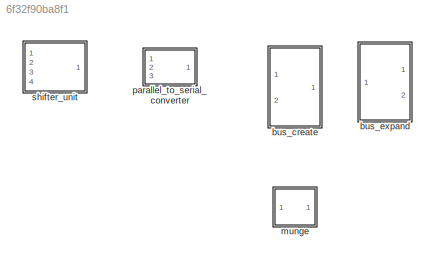
MODEL slx_6f32f90ba8f1
KIND library
CONFIG AbsTol = auto
CONFIG EnableMultiTasking = off
CONFIG FixedStep = auto
CONFIG MaxStep = auto
CONFIG MinStep = auto
CONFIG RelTol = 1e-3
CONFIG SampleTimeConstraint = Unconstrained
CONFIG Solver = ode45
CONFIG SolverName = ode45
CONFIG StartTime = 0.0
CONFIG StopTime = 10.0
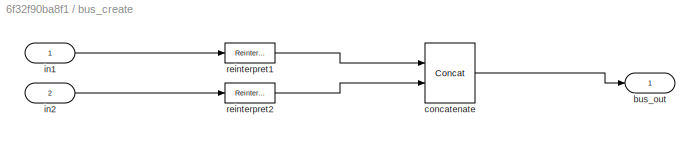
BLOCK [SubSystem] bus_create
  Ports = [2, 1]
  RequestExecContextInheritance = off
  UserDataPersistent = on
BLOCK [Outport] bus_create/bus_out
  IconDisplay = Port number
BLOCK [Reference] bus_create/concatenate  REF=xbsIndex_r4/Concat
  Ports = [2, 1]
  SourceBlock = xbsIndex_r4/Concat
  SourceType = Xilinx Bus Concatenator Block
BLOCK [Inport] bus_create/in1
  IconDisplay = Port number
BLOCK [Inport] bus_create/in2
  IconDisplay = Port number
  Port = 2
BLOCK [Reference] bus_create/reinterpret1  REF=xbsIndex_r4/Reinterpret
  Ports = [1, 1]
  SourceBlock = xbsIndex_r4/Reinterpret
  SourceType = Xilinx Type Reinterpreter Block
BLOCK [Reference] bus_create/reinterpret2  REF=xbsIndex_r4/Reinterpret
  Ports = [1, 1]
  SourceBlock = xbsIndex_r4/Reinterpret
  SourceType = Xilinx Type Reinterpreter Block
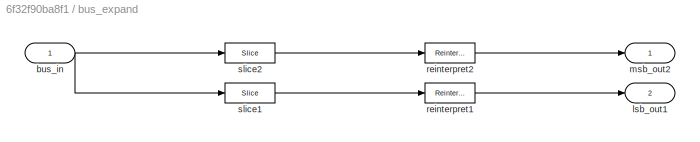
BLOCK [SubSystem] bus_expand
  AttributesFormatString = 2 outputs
  Ports = [1, 2]
  RequestExecContextInheritance = off
  UserDataPersistent = on
BLOCK [Inport] bus_expand/bus_in
  IconDisplay = Port number
BLOCK [Outport] bus_expand/lsb_out1
  IconDisplay = Port number
  Port = 2
BLOCK [Outport] bus_expand/msb_out2
  IconDisplay = Port number
BLOCK [Reference] bus_expand/reinterpret1  REF=xbsIndex_r4/Reinterpret
  Ports = [1, 1]
  SourceBlock = xbsIndex_r4/Reinterpret
  SourceType = Xilinx Type Reinterpreter Block
BLOCK [Reference] bus_expand/reinterpret2  REF=xbsIndex_r4/Reinterpret
  Ports = [1, 1]
  SourceBlock = xbsIndex_r4/Reinterpret
  SourceType = Xilinx Type Reinterpreter Block
BLOCK [Reference] bus_expand/slice1  REF=xbsIndex_r4/Slice
  Ports = [1, 1]
  SourceBlock = xbsIndex_r4/Slice
  SourceType = Xilinx Bit Slice Extractor Block
BLOCK [Reference] bus_expand/slice2  REF=xbsIndex_r4/Slice
  Ports = [1, 1]
  SourceBlock = xbsIndex_r4/Slice
  SourceType = Xilinx Bit Slice Extractor Block
BLOCK [SubSystem] munge
  Ports = []
  RequestExecContextInheritance = off
  UserDataPersistent = on
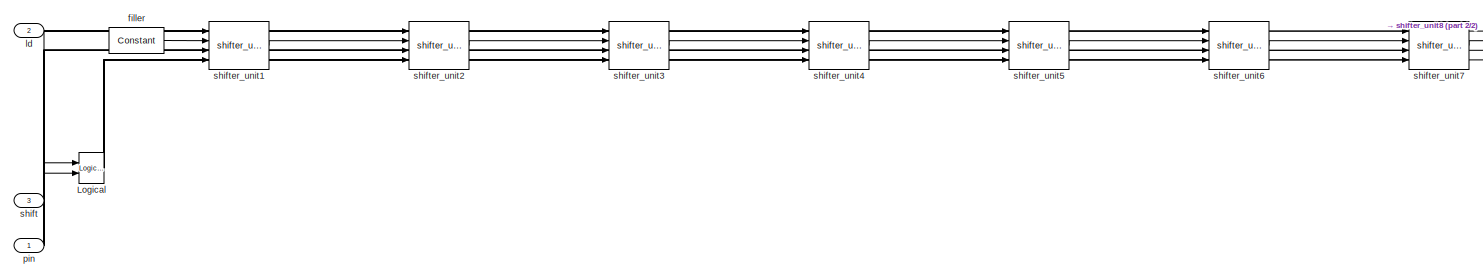
[diagram: parallel_to_serial_converter - part 1/2, most of the canvas]
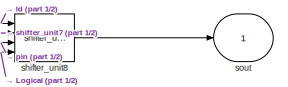
[diagram: parallel_to_serial_converter - part 2/2, top right region]
BLOCK [SubSystem] parallel_to_serial_converter
  Ports = [3, 1]
  RequestExecContextInheritance = off
  UserDataPersistent = on
BLOCK [Reference] parallel_to_serial_converter/Logical  REF=xbsIndex_r4/Logical
  Ports = [2, 1]
  SourceBlock = xbsIndex_r4/Logical
  SourceType = Xilinx Logical Block Block
BLOCK [Reference] parallel_to_serial_converter/filler  REF=xbsIndex_r4/Constant
  Ports = [0, 1]
  SourceBlock = xbsIndex_r4/Constant
  SourceType = Xilinx Constant Block Block
BLOCK [Inport] parallel_to_serial_converter/ld
  IconDisplay = Port number
  Port = 2
BLOCK [Inport] parallel_to_serial_converter/pin
  IconDisplay = Port number
BLOCK [Inport] parallel_to_serial_converter/shift
  IconDisplay = Port number
  Port = 3
BLOCK [Reference] parallel_to_serial_converter/shifter_unit1  REF=$bdroot/shifter_unit
  Ports = [4, 1]
  SourceBlock = $bdroot/shifter_unit
  SourceType = shifter_unit
BLOCK [Reference] parallel_to_serial_converter/shifter_unit2  REF=$bdroot/shifter_unit
  Ports = [4, 1]
  SourceBlock = $bdroot/shifter_unit
  SourceType = shifter_unit
BLOCK [Reference] parallel_to_serial_converter/shifter_unit3  REF=$bdroot/shifter_unit
  Ports = [4, 1]
  SourceBlock = $bdroot/shifter_unit
  SourceType = shifter_unit
BLOCK [Reference] parallel_to_serial_converter/shifter_unit4  REF=$bdroot/shifter_unit
  Ports = [4, 1]
  SourceBlock = $bdroot/shifter_unit
  SourceType = shifter_unit
BLOCK [Reference] parallel_to_serial_converter/shifter_unit5  REF=$bdroot/shifter_unit
  Ports = [4, 1]
  SourceBlock = $bdroot/shifter_unit
  SourceType = shifter_unit
BLOCK [Reference] parallel_to_serial_converter/shifter_unit6  REF=$bdroot/shifter_unit
  Ports = [4, 1]
  SourceBlock = $bdroot/shifter_unit
  SourceType = shifter_unit
BLOCK [Reference] parallel_to_serial_converter/shifter_unit7  REF=$bdroot/shifter_unit
  Ports = [4, 1]
  SourceBlock = $bdroot/shifter_unit
  SourceType = shifter_unit
BLOCK [Reference] parallel_to_serial_converter/shifter_unit8  REF=$bdroot/shifter_unit
  Ports = [4, 1]
  SourceBlock = $bdroot/shifter_unit
  SourceType = shifter_unit
BLOCK [Outport] parallel_to_serial_converter/sout
  IconDisplay = Port number
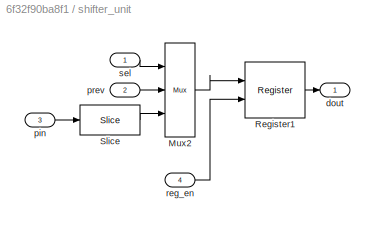
BLOCK [SubSystem] shifter_unit
  Ports = [4, 1]
  RequestExecContextInheritance = off
BLOCK [Reference] shifter_unit/Mux2  REF=xbsIndex_r4/Mux
  Ports = [3, 1]
  SourceBlock = xbsIndex_r4/Mux
  SourceType = Xilinx Bus Multiplexer Block
BLOCK [Reference] shifter_unit/Register1  REF=xbsIndex_r4/Register
  Ports = [2, 1]
  SourceBlock = xbsIndex_r4/Register
  SourceType = Xilinx Register Block
BLOCK [Reference] shifter_unit/Slice  REF=xbsIndex_r4/Slice
  Ports = [1, 1]
  SourceBlock = xbsIndex_r4/Slice
  SourceType = Xilinx Bit Slice Extractor Block
BLOCK [Outport] shifter_unit/dout
  IconDisplay = Port number
BLOCK [Inport] shifter_unit/pin
  IconDisplay = Port number
  Port = 3
BLOCK [Inport] shifter_unit/prev
  IconDisplay = Port number
  Port = 2
BLOCK [Inport] shifter_unit/reg_en
  IconDisplay = Port number
  Port = 4
BLOCK [Inport] shifter_unit/sel
  IconDisplay = Port number
LINE bus_create/concatenate:1 -> bus_create/bus_out:1
LINE bus_create/in1:1 -> bus_create/reinterpret1:1
LINE bus_create/in2:1 -> bus_create/reinterpret2:1
LINE bus_create/reinterpret1:1 -> bus_create/concatenate:1
LINE bus_create/reinterpret2:1 -> bus_create/concatenate:2
NET bus_expand/bus_in:1 -> bus_expand/slice1:1, bus_expand/slice2:1
LINE bus_expand/reinterpret1:1 -> bus_expand/lsb_out1:1
LINE bus_expand/reinterpret2:1 -> bus_expand/msb_out2:1
LINE bus_expand/slice1:1 -> bus_expand/reinterpret1:1
LINE bus_expand/slice2:1 -> bus_expand/reinterpret2:1
NET parallel_to_serial_converter/Logical:1 -> parallel_to_serial_converter/shifter_unit1:4, parallel_to_serial_converter/shifter_unit2:4, parallel_to_serial_converter/shifter_unit3:4, parallel_to_serial_converter/shifter_unit4:4, parallel_to_serial_converter/shifter_unit5:4, parallel_to_serial_converter/shifter_unit6:4, parallel_to_serial_converter/shifter_unit7:4, parallel_to_serial_converter/shifter_unit8:4
LINE parallel_to_serial_converter/filler:1 -> parallel_to_serial_converter/shifter_unit1:2
NET parallel_to_serial_converter/ld:1 -> parallel_to_serial_converter/Logical:1, parallel_to_serial_converter/shifter_unit1:1, parallel_to_serial_converter/shifter_unit2:1, parallel_to_serial_converter/shifter_unit3:1, parallel_to_serial_converter/shifter_unit4:1, parallel_to_serial_converter/shifter_unit5:1, parallel_to_serial_converter/shifter_unit6:1, parallel_to_serial_converter/shifter_unit7:1, parallel_to_serial_converter/shifter_unit8:1
NET parallel_to_serial_converter/pin:1 -> parallel_to_serial_converter/shifter_unit1:3, parallel_to_serial_converter/shifter_unit2:3, parallel_to_serial_converter/shifter_unit3:3, parallel_to_serial_converter/shifter_unit4:3, parallel_to_serial_converter/shifter_unit5:3, parallel_to_serial_converter/shifter_unit6:3, parallel_to_serial_converter/shifter_unit7:3, parallel_to_serial_converter/shifter_unit8:3
LINE parallel_to_serial_converter/shift:1 -> parallel_to_serial_converter/Logical:2
LINE parallel_to_serial_converter/shifter_unit1:1 -> parallel_to_serial_converter/shifter_unit2:2
LINE parallel_to_serial_converter/shifter_unit2:1 -> parallel_to_serial_converter/shifter_unit3:2
LINE parallel_to_serial_converter/shifter_unit3:1 -> parallel_to_serial_converter/shifter_unit4:2
LINE parallel_to_serial_converter/shifter_unit4:1 -> parallel_to_serial_converter/shifter_unit5:2
LINE parallel_to_serial_converter/shifter_unit5:1 -> parallel_to_serial_converter/shifter_unit6:2
LINE parallel_to_serial_converter/shifter_unit6:1 -> parallel_to_serial_converter/shifter_unit7:2
LINE parallel_to_serial_converter/shifter_unit7:1 -> parallel_to_serial_converter/shifter_unit8:2
LINE parallel_to_serial_converter/shifter_unit8:1 -> parallel_to_serial_converter/sout:1
LINE shifter_unit/Mux2:1 -> shifter_unit/Register1:1
LINE shifter_unit/Register1:1 -> shifter_unit/dout:1
LINE shifter_unit/Slice:1 -> shifter_unit/Mux2:3
LINE shifter_unit/pin:1 -> shifter_unit/Slice:1
LINE shifter_unit/prev:1 -> shifter_unit/Mux2:2
LINE shifter_unit/reg_en:1 -> shifter_unit/Register1:2
LINE shifter_unit/sel:1 -> shifter_unit/Mux2:1
note: NET lines group one-source signal fan-out (src -> all destinations, sorted); 1:1 wires keep LINE
